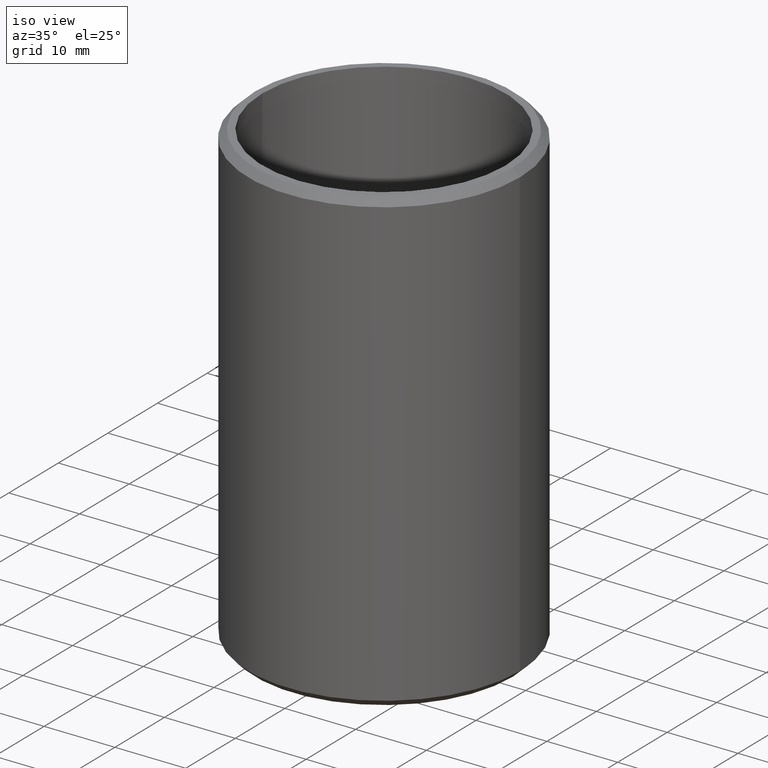
[diagram: clean part render]
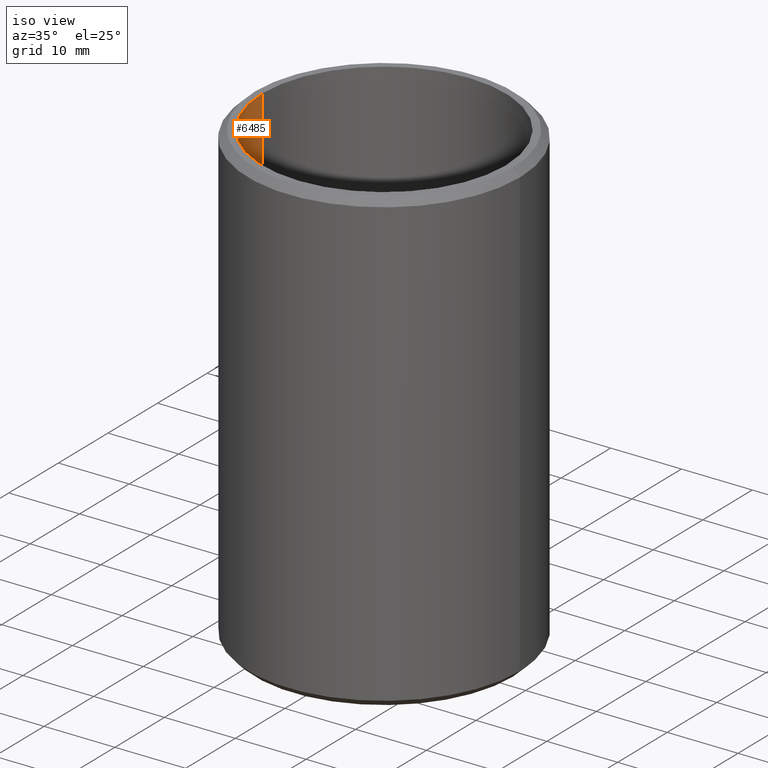
[diagram: same view with one face highlighted and labeled with its STEP entity id]
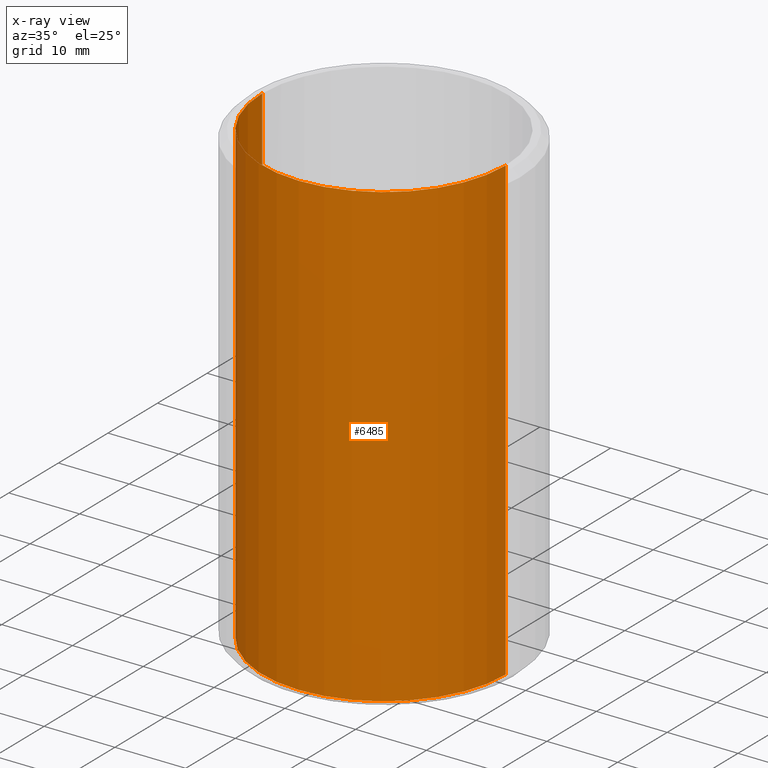
[diagram: x-ray of the same camera — body ghosted, the highlighted face saturated]
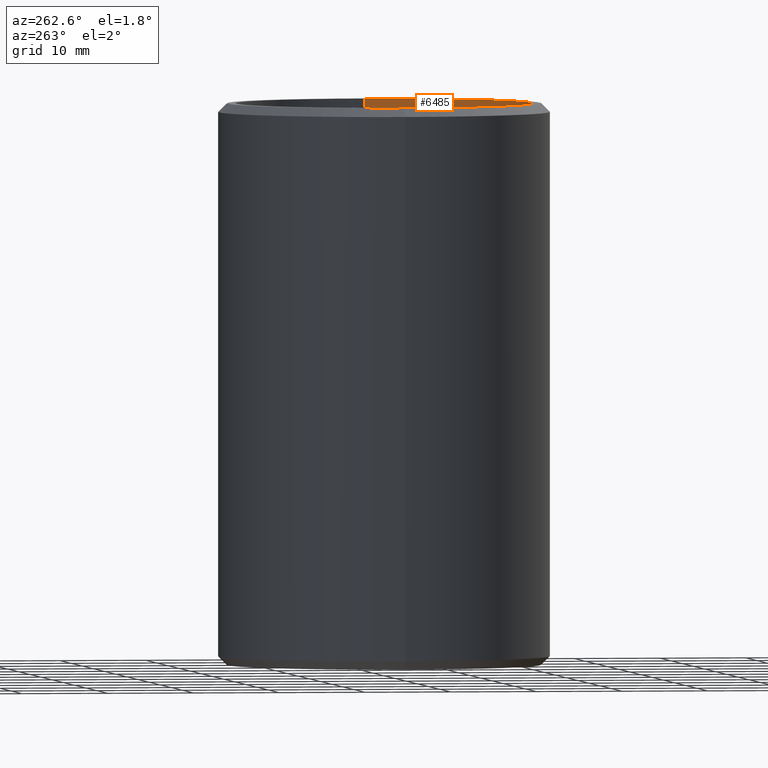
[diagram: same view with one face highlighted and labeled with its STEP entity id]
A machine part, iso view. The second image highlights one B-rep face of the part: STEP entity #6485.
The next image is the same camera in x-ray: the body ghosted, the highlighted face saturated — about 0% of this face is hidden behind the body in this view.
A second angle (auxiliary view) of the same face is appended — the face is thin or edge-on in the first view.
In plain terms, the highlighted cylindrical surface (partial cylindrical patch) has radius 17.2 mm, axis along (-0, -0, -1).
Its self-contained STEP definition (entity closure, byte-faithful):
#44 = LINE ( 'NONE', #8209, #573 ) ;
#51 = VERTEX_POINT ( 'NONE', #8449 ) ;
#99 = CARTESIAN_POINT ( 'NONE',  ( -17.20000000000001000, -0.01147758811715162400, 6.124840077553344900 ) ) ;
#102 = CARTESIAN_POINT ( 'NONE',  ( -17.19999999999999900, -1.551054894538230000E-016, 0.3137686965812014300 ) ) ;
#112 = CARTESIAN_POINT ( 'NONE',  ( -17.19999999999999900, -6.273337765602161900E-017, -0.9890523481114830200 ) ) ;
#114 = B_SPLINE_CURVE_WITH_KNOTS ( 'NONE', 3,
 ( #2990, #9172, #10068, #6494 ),
 .UNSPECIFIED., .F., .F.,
 ( 4, 4 ),
 ( 0.0004003676352162051500, 0.0005426836108652361800 ),
 .UNSPECIFIED. ) ;
#121 = EDGE_CURVE ( 'NONE', #8332, #11373, #11036, .T. ) ;
#150 = DIRECTION ( 'NONE',  ( -0.0000000000000000000, -0.0000000000000000000, -1.000000000000000000 ) ) ;
#159 = LINE ( 'NONE', #3609, #10901 ) ;
#178 = CARTESIAN_POINT ( 'NONE',  ( -17.19999999999999200, -6.750052143481618400E-013, -1.680950252913672400 ) ) ;
#181 = VECTOR ( 'NONE', #5483, 1000.000000000000000 ) ;
#190 = B_SPLINE_CURVE_WITH_KNOTS ( 'NONE', 3,
 ( #9475, #4318, #10673, #1000 ),
 .UNSPECIFIED., .F., .F.,
 ( 4, 4 ),
 ( 0.0007601452019977792300, 0.0009231551795491816700 ),
 .UNSPECIFIED. ) ;
#223 = EDGE_CURVE ( 'NONE', #286, #8178, #1252, .T. ) ;
#238 = EDGE_CURVE ( 'NONE', #2799, #9664, #7569, .T. ) ;
#248 = CARTESIAN_POINT ( 'NONE',  ( -17.19999163786001600, -0.01696047008547024000, 7.612335987580130400 ) ) ;
#286 = VERTEX_POINT ( 'NONE', #8363 ) ;
#290 = CARTESIAN_POINT ( 'NONE',  ( -17.19999999999999900, -0.02204698858159689600, -8.669092301580365100 ) ) ;
#305 = VERTEX_POINT ( 'NONE', #3044 ) ;
#316 = B_SPLINE_CURVE_WITH_KNOTS ( 'NONE', 3,
 ( #9083, #4637, #5633, #6528 ),
 .UNSPECIFIED., .F., .F.,
 ( 4, 4 ),
 ( 0.0000000000000000000, 0.0001645194095886692000 ),
 .UNSPECIFIED. ) ;
#355 = ORIENTED_EDGE ( 'NONE', *, *, #5354, .F. ) ;
#367 = CARTESIAN_POINT ( 'NONE',  ( -17.19999274129229900, -0.01584145475481894100, 7.660271664736980000 ) ) ;
#420 = DIRECTION ( 'NONE',  ( -0.0000000000000000000, -0.0000000000000000000, -1.000000000000000000 ) ) ;
#485 = ORIENTED_EDGE ( 'NONE', *, *, #5234, .F. ) ;
#532 = EDGE_CURVE ( 'NONE', #8866, #9374, #4389, .T. ) ;
#548 = VECTOR ( 'NONE', #9998, 1000.000000000000000 ) ;
#560 = CARTESIAN_POINT ( 'NONE',  ( -17.19999999999999900, 7.823013235844992600E-012, 7.753592224367760200 ) ) ;
#567 = VERTEX_POINT ( 'NONE', #112 ) ;
#568 = ORIENTED_EDGE ( 'NONE', *, *, #10155, .F. ) ;
#572 = VECTOR ( 'NONE', #4758, 1000.000000000000000 ) ;
#573 = VECTOR ( 'NONE', #8950, 1000.000000000000000 ) ;
#642 = CARTESIAN_POINT ( 'NONE',  ( -17.19999999999999900, 0.0000000000000000000, 32.50000000000000000 ) ) ;
#652 = CARTESIAN_POINT ( 'NONE',  ( -17.19996839924588300, -0.03298397858884000200, -8.502422365173185200 ) ) ;
#666 = VERTEX_POINT ( 'NONE', #9406 ) ;
#669 = CARTESIAN_POINT ( 'NONE',  ( -17.19999163786001600, -0.01696047008547024000, 6.034217247596156000 ) ) ;
#703 = VECTOR ( 'NONE', #7242, 1000.000000000000000 ) ;
#711 = CARTESIAN_POINT ( 'NONE',  ( -17.19999999999999900, -1.551054894538230000E-016, 5.249265491452992400 ) ) ;
#735 = ORIENTED_EDGE ( 'NONE', *, *, #1875, .T. ) ;
#782 = EDGE_CURVE ( 'NONE', #2382, #11032, #2619, .T. ) ;
#785 = B_SPLINE_CURVE_WITH_KNOTS ( 'NONE', 3,
 ( #8468, #652, #7536, #6690 ),
 .UNSPECIFIED., .F., .F.,
 ( 4, 4 ),
 ( 0.0000000000000000000, 0.0001645194095886690400 ),
 .UNSPECIFIED. ) ;
#799 = EDGE_CURVE ( 'NONE', #3385, #5869, #159, .T. ) ;
#806 = VECTOR ( 'NONE', #11263, 1000.000000000000000 ) ;
#814 = EDGE_CURVE ( 'NONE', #8173, #9860, #11387, .T. ) ;
#817 = CARTESIAN_POINT ( 'NONE',  ( -17.19999999999999900, 0.0000000000000000000, 32.50000000000000000 ) ) ;
#833 = CARTESIAN_POINT ( 'NONE',  ( -17.19999999999999900, -1.551054894538230000E-016, 32.50000000000000000 ) ) ;
#863 = EDGE_LOOP ( 'NONE', ( #5368, #10427, #3969, #8916, #2863, #10523, #1728, #9121, #5558, #9563, #7054, #10760, #485, #1609, #5711, #355, #4278, #568, #3083, #2821, #4075, #1535, #10247, #10856, #6209, #3281, #5432, #3047, #3494, #9116, #3871, #8063, #1261, #2928, #4181, #3201, #8839, #4590, #4227, #1978, #6651, #9486, #4692, #2667, #9154, #4438, #11410, #8717, #9963, #8044, #1830, #2500, #8591, #735, #1169 ) ) ;
#924 = EDGE_CURVE ( 'NONE', #5114, #2052, #316, .T. ) ;
#952 = VECTOR ( 'NONE', #5932, 1000.000000000000000 ) ;
#988 = VECTOR ( 'NONE', #2514, 1000.000000000000000 ) ;
#1000 = CARTESIAN_POINT ( 'NONE',  ( -17.19996655141567400, -0.03392094017094032800, -3.876792451255335800 ) ) ;
#1015 = CARTESIAN_POINT ( 'NONE',  ( -17.19999999999999200, 5.563113133065403100E-012, 3.200599436973296600 ) ) ;
#1017 = CARTESIAN_POINT ( 'NONE',  ( 0.0000000000000000000, 0.0000000000000000000, -32.50000000000000000 ) ) ;
#1059 = CARTESIAN_POINT ( 'NONE',  ( -17.19999999999999900, -1.551054894538230000E-016, -6.080328525641023800 ) ) ;
#1084 = CARTESIAN_POINT ( 'NONE',  ( -17.19999999999999900, -1.551054894538230000E-016, 32.50000000000000000 ) ) ;
#1137 = CARTESIAN_POINT ( 'NONE',  ( -17.19999999999999900, -1.551054894538230000E-016, 32.50000000000000000 ) ) ;
#1143 = B_SPLINE_CURVE_WITH_KNOTS ( 'NONE', 3,
 ( #248, #367, #7256, #560 ),
 .UNSPECIFIED., .F., .F.,
 ( 4, 4 ),
 ( 0.0000000000000000000, 0.0001419623447413036500 ),
 .UNSPECIFIED. ) ;
#1164 = VECTOR ( 'NONE', #11254, 1000.000000000000000 ) ;
#1165 = CARTESIAN_POINT ( 'NONE',  ( -17.19999999999999900, 0.0000000000000000000, 32.50000000000000000 ) ) ;
#1169 = ORIENTED_EDGE ( 'NONE', *, *, #2617, .F. ) ;
#1175 = DIRECTION ( 'NONE',  ( 0.0000000000000000000, 0.0000000000000000000, 1.000000000000000000 ) ) ;
#1230 = CIRCLE ( 'NONE', #8338, 17.19999999999999900 ) ;
#1238 = EDGE_CURVE ( 'NONE', #6606, #7451, #1230, .T. ) ;
#1252 = LINE ( 'NONE', #1739, #10365 ) ;
#1261 = ORIENTED_EDGE ( 'NONE', *, *, #11067, .T. ) ;
#1264 = DIRECTION ( 'NONE',  ( 0.0000000000000000000, 0.0000000000000000000, 1.000000000000000000 ) ) ;
#1299 = CARTESIAN_POINT ( 'NONE',  ( -17.19999999999999900, -1.551054894538230000E-016, 6.894431089743593900 ) ) ;
#1310 = LINE ( 'NONE', #4322, #7229 ) ;
#1321 = VECTOR ( 'NONE', #420, 1000.000000000000000 ) ;
#1338 = DIRECTION ( 'NONE',  ( -0.0000000000000000000, -0.0000000000000000000, -1.000000000000000000 ) ) ;
#1342 = VERTEX_POINT ( 'NONE', #3828 ) ;
#1365 = EDGE_CURVE ( 'NONE', #8421, #7171, #114, .T. ) ;
#1379 = EDGE_CURVE ( 'NONE', #11047, #9265, #2312, .T. ) ;
#1461 = AXIS2_PLACEMENT_3D ( 'NONE', #8137, #10742, #2056 ) ;
#1504 = CARTESIAN_POINT ( 'NONE',  ( -17.19999999999999900, 0.0000000000000000000, 32.50000000000000000 ) ) ;
#1535 = ORIENTED_EDGE ( 'NONE', *, *, #9478, .T. ) ;
#1566 = B_SPLINE_CURVE_WITH_KNOTS ( 'NONE', 3,
 ( #10483, #11374, #5265, #2538 ),
 .UNSPECIFIED., .F., .F.,
 ( 4, 4 ),
 ( 0.0003122496410272485500, 0.0004517219168809347100 ),
 .UNSPECIFIED. ) ;
#1582 = VERTEX_POINT ( 'NONE', #8759 ) ;
#1593 = CARTESIAN_POINT ( 'NONE',  ( -17.19999999999999900, 0.0000000000000000000, 32.50000000000000000 ) ) ;
#1597 = CARTESIAN_POINT ( 'NONE',  ( -17.20000000000000300, -0.01147758811715395700, 3.156757812596070700 ) ) ;
#1609 = ORIENTED_EDGE ( 'NONE', *, *, #11402, .T. ) ;
#1636 = CARTESIAN_POINT ( 'NONE',  ( -17.19999999999999900, -1.551054894538230000E-016, 8.912727029914528000 ) ) ;
#1649 = CARTESIAN_POINT ( 'NONE',  ( -17.19999999999999900, -0.02309534533612294200, -3.766004389472338500 ) ) ;
#1653 = LINE ( 'NONE', #9196, #7167 ) ;
#1726 = LINE ( 'NONE', #3052, #1321 ) ;
#1728 = ORIENTED_EDGE ( 'NONE', *, *, #121, .F. ) ;
#1739 = CARTESIAN_POINT ( 'NONE',  ( -17.19999999999999900, -1.551054894538230000E-016, 32.50000000000000000 ) ) ;
#1806 = EDGE_CURVE ( 'NONE', #7171, #7641, #1143, .T. ) ;
#1830 = ORIENTED_EDGE ( 'NONE', *, *, #1365, .T. ) ;
#1875 = EDGE_CURVE ( 'NONE', #9357, #5547, #4371, .T. ) ;
#1939 = CARTESIAN_POINT ( 'NONE',  ( -17.19999999999999900, -1.551054894538230000E-016, 1.433159722222229900 ) ) ;
#1976 = VERTEX_POINT ( 'NONE', #7746 ) ;
#1978 = ORIENTED_EDGE ( 'NONE', *, *, #8016, .T. ) ;
#1995 = EDGE_CURVE ( 'NONE', #7451, #6907, #9082, .T. ) ;
#2006 = CARTESIAN_POINT ( 'NONE',  ( -17.19999999999999900, -1.551054894538230000E-016, 32.50000000000000000 ) ) ;
#2020 = CARTESIAN_POINT ( 'NONE',  ( -17.19996655141567400, -0.03392094017094032800, -0.8021772335737118500 ) ) ;
#2034 = VERTEX_POINT ( 'NONE', #7146 ) ;
#2052 = VERTEX_POINT ( 'NONE', #178 ) ;
#2056 = DIRECTION ( 'NONE',  ( -1.000000000000000000, 0.0000000000000000000, 0.0000000000000000000 ) ) ;
#2111 = CARTESIAN_POINT ( 'NONE',  ( -17.19996815175934300, -0.03310946921701069700, -8.613626624733939300 ) ) ;
#2130 = CARTESIAN_POINT ( 'NONE',  ( -17.19999999999999900, -4.707872648310445400E-014, 2.928196923410093500 ) ) ;
#2143 = CARTESIAN_POINT ( 'NONE',  ( -17.19996815175935000, -0.03310946921701088400, -1.897280470887784600 ) ) ;
#2183 = EDGE_CURVE ( 'NONE', #8786, #2375, #11141, .T. ) ;
#2216 = VECTOR ( 'NONE', #5957, 1000.000000000000000 ) ;
#2226 = FACE_OUTER_BOUND ( 'NONE', #863, .T. ) ;
#2260 = VECTOR ( 'NONE', #9498, 1000.000000000000000 ) ;
#2309 = DIRECTION ( 'NONE',  ( 0.0000000000000000000, 0.0000000000000000000, 1.000000000000000000 ) ) ;
#2312 = LINE ( 'NONE', #4642, #548 ) ;
#2331 = CARTESIAN_POINT ( 'NONE',  ( -17.19999999999999900, -1.551054894538230000E-016, 32.50000000000000000 ) ) ;
#2334 = CARTESIAN_POINT ( 'NONE',  ( -17.19999999999999900, 0.0000000000000000000, 32.50000000000000000 ) ) ;
#2352 = LINE ( 'NONE', #2334, #2216 ) ;
#2366 = VECTOR ( 'NONE', #4768, 1000.000000000000000 ) ;
#2375 = VERTEX_POINT ( 'NONE', #6144 ) ;
#2382 = VERTEX_POINT ( 'NONE', #102 ) ;
#2384 = VERTEX_POINT ( 'NONE', #1015 ) ;
#2438 = CARTESIAN_POINT ( 'NONE',  ( -17.19999999999999200, 5.563113133065403100E-012, 3.200599436973296600 ) ) ;
#2448 = EDGE_CURVE ( 'NONE', #51, #2953, #5488, .T. ) ;
#2471 = EDGE_CURVE ( 'NONE', #51, #5087, #2974, .T. ) ;
#2493 = CARTESIAN_POINT ( 'NONE',  ( -17.19999999999999900, -1.551054894538230000E-016, 5.639356303418805900 ) ) ;
#2500 = ORIENTED_EDGE ( 'NONE', *, *, #1806, .T. ) ;
#2514 = DIRECTION ( 'NONE',  ( -0.0000000000000000000, -0.0000000000000000000, -1.000000000000000000 ) ) ;
#2538 = CARTESIAN_POINT ( 'NONE',  ( -17.19999163786001600, -0.01696047008547024000, 6.034217247596156000 ) ) ;
#2543 = CARTESIAN_POINT ( 'NONE',  ( -17.19999999999999900, -1.551054894538230000E-016, -2.942641559829053800 ) ) ;
#2610 = EDGE_CURVE ( 'NONE', #286, #4841, #9799, .T. ) ;
#2617 = EDGE_CURVE ( 'NONE', #6606, #5547, #7962, .T. ) ;
#2619 = LINE ( 'NONE', #5086, #8663 ) ;
#2647 = CARTESIAN_POINT ( 'NONE',  ( -17.19999999999999900, -1.551054894538230000E-016, 32.50000000000000000 ) ) ;
#2649 = CARTESIAN_POINT ( 'NONE',  ( -17.19999999999999900, 5.566822396220548000E-012, 6.168681701930575300 ) ) ;
#2667 = ORIENTED_EDGE ( 'NONE', *, *, #9451, .T. ) ;
#2692 = CARTESIAN_POINT ( 'NONE',  ( -17.19999163786001600, -0.01696047008547024000, 6.034217247596156000 ) ) ;
#2724 = EDGE_CURVE ( 'NONE', #5087, #11373, #785, .T. ) ;
#2771 = VECTOR ( 'NONE', #5889, 1000.000000000000000 ) ;
#2799 = VERTEX_POINT ( 'NONE', #1939 ) ;
#2821 = ORIENTED_EDGE ( 'NONE', *, *, #924, .T. ) ;
#2863 = ORIENTED_EDGE ( 'NONE', *, *, #2471, .T. ) ;
#2877 = CARTESIAN_POINT ( 'NONE',  ( 0.0000000000000000000, 0.0000000000000000000, 32.50000000000000000 ) ) ;
#2902 = LINE ( 'NONE', #9946, #5083 ) ;
#2928 = ORIENTED_EDGE ( 'NONE', *, *, #8033, .F. ) ;
#2953 = VERTEX_POINT ( 'NONE', #5518 ) ;
#2974 = B_SPLINE_CURVE_WITH_KNOTS ( 'NONE', 3,
 ( #4564, #290, #2111, #6349 ),
 .UNSPECIFIED., .F., .F.,
 ( 4, 4 ),
 ( 0.0007601452019977896400, 0.0009231551795491898000 ),
 .UNSPECIFIED. ) ;
#2990 = CARTESIAN_POINT ( 'NONE',  ( -17.20000000000000600, -1.062149140308146800E-013, 7.468995267329146000 ) ) ;
#3044 = CARTESIAN_POINT ( 'NONE',  ( -17.19999999999999900, -1.551054894538230000E-016, 2.281183226495734600 ) ) ;
#3047 = ORIENTED_EDGE ( 'NONE', *, *, #7420, .F. ) ;
#3052 = CARTESIAN_POINT ( 'NONE',  ( -17.19999999999999900, 0.0000000000000000000, 32.50000000000000000 ) ) ;
#3083 = ORIENTED_EDGE ( 'NONE', *, *, #11240, .T. ) ;
#3085 = DIRECTION ( 'NONE',  ( 0.0000000000000000000, 0.0000000000000000000, 1.000000000000000000 ) ) ;
#3090 = EDGE_CURVE ( 'NONE', #7702, #1976, #1726, .T. ) ;
#3170 = LINE ( 'NONE', #642, #9962 ) ;
#3201 = ORIENTED_EDGE ( 'NONE', *, *, #3424, .T. ) ;
#3279 = EDGE_CURVE ( 'NONE', #2382, #2375, #10830, .T. ) ;
#3281 = ORIENTED_EDGE ( 'NONE', *, *, #2183, .F. ) ;
#3284 = CARTESIAN_POINT ( 'NONE',  ( -17.19996880443272500, -0.03277852437333300000, -0.7445069608378776000 ) ) ;
#3297 = DIRECTION ( 'NONE',  ( -0.0000000000000000000, -0.0000000000000000000, -1.000000000000000000 ) ) ;
#3315 = EDGE_CURVE ( 'NONE', #7702, #9374, #1310, .T. ) ;
#3336 = CARTESIAN_POINT ( 'NONE',  ( -17.19999999999999900, -1.551054894538230000E-016, 2.671274038461541400 ) ) ;
#3364 = DIRECTION ( 'NONE',  ( 0.0000000000000000000, 0.0000000000000000000, 1.000000000000000000 ) ) ;
#3385 = VERTEX_POINT ( 'NONE', #7065 ) ;
#3391 = CARTESIAN_POINT ( 'NONE',  ( -17.19999999999999900, -1.551054894538230000E-016, 32.50000000000000000 ) ) ;
#3422 = LINE ( 'NONE', #1084, #8967 ) ;
#3424 = EDGE_CURVE ( 'NONE', #4586, #2384, #6297, .T. ) ;
#3438 = DIRECTION ( 'NONE',  ( -0.0000000000000000000, -0.0000000000000000000, -1.000000000000000000 ) ) ;
#3477 = LINE ( 'NONE', #3881, #2366 ) ;
#3494 = ORIENTED_EDGE ( 'NONE', *, *, #238, .T. ) ;
#3500 = CARTESIAN_POINT ( 'NONE',  ( -17.19999999999999900, -1.551054894538230000E-016, 1.043068910256413000 ) ) ;
#3509 = CARTESIAN_POINT ( 'NONE',  ( -17.19999999999999900, -6.753671091748762400E-013, -3.716206663170081200 ) ) ;
#3519 = CARTESIAN_POINT ( 'NONE',  ( -17.19996655141567400, -0.03392094017094032800, -3.876792451255335800 ) ) ;
#3580 = CARTESIAN_POINT ( 'NONE',  ( -17.19999999999999900, -3.796825186067401300E-016, -2.002959115374386200 ) ) ;
#3592 = LINE ( 'NONE', #8303, #572 ) ;
#3609 = CARTESIAN_POINT ( 'NONE',  ( -17.19999999999999900, -1.551054894538230000E-016, 32.50000000000000000 ) ) ;
#3615 = DIRECTION ( 'NONE',  ( 0.0000000000000000000, 0.0000000000000000000, 1.000000000000000000 ) ) ;
#3623 = CYLINDRICAL_SURFACE ( 'NONE', #1461, 17.19999999999999900 ) ;
#3670 = EDGE_CURVE ( 'NONE', #8686, #1342, #8904, .T. ) ;
#3682 = CARTESIAN_POINT ( 'NONE',  ( -17.19999999999999900, 0.0000000000000000000, 32.50000000000000000 ) ) ;
#3692 = DIRECTION ( 'NONE',  ( -0.0000000000000000000, -0.0000000000000000000, -1.000000000000000000 ) ) ;
#3703 = VECTOR ( 'NONE', #150, 1000.000000000000000 ) ;
#3761 = B_SPLINE_CURVE_WITH_KNOTS ( 'NONE', 3,
 ( #7412, #8263, #2143, #9171 ),
 .UNSPECIFIED., .F., .F.,
 ( 4, 4 ),
 ( 0.0007601452019977557000, 0.0009231551795491461100 ),
 .UNSPECIFIED. ) ;
#3793 = EDGE_CURVE ( 'NONE', #5091, #9664, #7369, .T. ) ;
#3802 = CARTESIAN_POINT ( 'NONE',  ( -17.19999999999999900, -6.273337765602161900E-017, -0.9890523481114830200 ) ) ;
#3828 = CARTESIAN_POINT ( 'NONE',  ( -17.19999999999999900, -1.551054894538230000E-016, 3.926348824786327600 ) ) ;
#3859 = DIRECTION ( 'NONE',  ( -0.0000000000000000000, -0.0000000000000000000, -1.000000000000000000 ) ) ;
#3871 = ORIENTED_EDGE ( 'NONE', *, *, #10105, .T. ) ;
#3873 = CARTESIAN_POINT ( 'NONE',  ( -17.19996655141567400, -0.03392094017094032800, -0.8021772335737118500 ) ) ;
#3881 = CARTESIAN_POINT ( 'NONE',  ( -17.19999999999999900, 0.0000000000000000000, 32.50000000000000000 ) ) ;
#3888 = CIRCLE ( 'NONE', #10384, 17.19999999999999900 ) ;
#3924 = CARTESIAN_POINT ( 'NONE',  ( -17.20000000000001000, -0.01155977357769695200, 2.973092807608460800 ) ) ;
#3969 = ORIENTED_EDGE ( 'NONE', *, *, #6368, .F. ) ;
#3988 = VERTEX_POINT ( 'NONE', #10432 ) ;
#4015 = VECTOR ( 'NONE', #4681, 1000.000000000000000 ) ;
#4075 = ORIENTED_EDGE ( 'NONE', *, *, #8141, .F. ) ;
#4181 = ORIENTED_EDGE ( 'NONE', *, *, #7930, .T. ) ;
#4196 = CARTESIAN_POINT ( 'NONE',  ( -17.19999999999999900, -1.551054894538230000E-016, 32.50000000000000000 ) ) ;
#4227 = ORIENTED_EDGE ( 'NONE', *, *, #3670, .F. ) ;
#4231 = CARTESIAN_POINT ( 'NONE',  ( -17.20000000000001000, -6.754374129094985500E-013, -8.397296406759828400 ) ) ;
#4278 = ORIENTED_EDGE ( 'NONE', *, *, #7184, .T. ) ;
#4301 = EDGE_CURVE ( 'NONE', #8472, #8178, #5000, .T. ) ;
#4309 = LINE ( 'NONE', #817, #1164 ) ;
#4318 = CARTESIAN_POINT ( 'NONE',  ( -17.20000000000000600, -0.02204698858159715600, -3.988002557990613100 ) ) ;
#4322 = CARTESIAN_POINT ( 'NONE',  ( -17.19999999999999900, -1.551054894538230000E-016, 32.50000000000000000 ) ) ;
#4371 = LINE ( 'NONE', #9434, #806 ) ;
#4389 = LINE ( 'NONE', #1165, #5897 ) ;
#4438 = ORIENTED_EDGE ( 'NONE', *, *, #9301, .T. ) ;
#4453 = CARTESIAN_POINT ( 'NONE',  ( -17.19999999999999900, 0.0000000000000000000, 32.50000000000000000 ) ) ;
#4521 = CARTESIAN_POINT ( 'NONE',  ( -17.19999163786001600, -0.01696047008547024000, 3.066134982638891900 ) ) ;
#4553 = DIRECTION ( 'NONE',  ( -0.0000000000000000000, -0.0000000000000000000, -1.000000000000000000 ) ) ;
#4564 = CARTESIAN_POINT ( 'NONE',  ( -17.20000000000000600, -7.210367963502232600E-016, -8.719305269220541300 ) ) ;
#4586 = VERTEX_POINT ( 'NONE', #4521 ) ;
#4590 = ORIENTED_EDGE ( 'NONE', *, *, #4810, .T. ) ;
#4617 = CARTESIAN_POINT ( 'NONE',  ( -17.19999999999999900, 0.0000000000000000000, 32.50000000000000000 ) ) ;
#4637 = CARTESIAN_POINT ( 'NONE',  ( -17.19996839924588300, -0.03298397858883993900, -1.786076211327030500 ) ) ;
#4638 = DIRECTION ( 'NONE',  ( 0.0000000000000000000, 0.0000000000000000000, 1.000000000000000000 ) ) ;
#4642 = CARTESIAN_POINT ( 'NONE',  ( -17.19999999999999900, 0.0000000000000000000, 32.50000000000000000 ) ) ;
#4646 = CARTESIAN_POINT ( 'NONE',  ( -17.19996769502841600, -0.03334105939266332500, -0.8661805948283112200 ) ) ;
#4681 = DIRECTION ( 'NONE',  ( 0.0000000000000000000, 0.0000000000000000000, 1.000000000000000000 ) ) ;
#4692 = ORIENTED_EDGE ( 'NONE', *, *, #4301, .F. ) ;
#4758 = DIRECTION ( 'NONE',  ( -0.0000000000000000000, -0.0000000000000000000, -1.000000000000000000 ) ) ;
#4768 = DIRECTION ( 'NONE',  ( -0.0000000000000000000, -0.0000000000000000000, -1.000000000000000000 ) ) ;
#4810 = EDGE_CURVE ( 'NONE', #3988, #1342, #6396, .T. ) ;
#4827 = CARTESIAN_POINT ( 'NONE',  ( -17.19999999999999900, 0.0000000000000000000, 32.50000000000000000 ) ) ;
#4841 = VERTEX_POINT ( 'NONE', #11148 ) ;
#5000 = LINE ( 'NONE', #6402, #9310 ) ;
#5065 = EDGE_CURVE ( 'NONE', #9357, #7641, #4309, .T. ) ;
#5083 = VECTOR ( 'NONE', #3859, 1000.000000000000000 ) ;
#5086 = CARTESIAN_POINT ( 'NONE',  ( -17.19999999999999900, 0.0000000000000000000, 32.50000000000000000 ) ) ;
#5087 = VERTEX_POINT ( 'NONE', #6293 ) ;
#5091 = VERTEX_POINT ( 'NONE', #6251 ) ;
#5114 = VERTEX_POINT ( 'NONE', #5223 ) ;
#5125 = VERTEX_POINT ( 'NONE', #3580 ) ;
#5220 = CARTESIAN_POINT ( 'NONE',  ( -17.19996655141567400, -0.03392094017094032800, -3.876792451255335800 ) ) ;
#5223 = CARTESIAN_POINT ( 'NONE',  ( -17.19996655141567400, -0.03392094017094032800, -1.841536040998927600 ) ) ;
#5234 = EDGE_CURVE ( 'NONE', #2034, #1582, #9573, .T. ) ;
#5253 = CARTESIAN_POINT ( 'NONE',  ( -17.19999163786001600, -0.01696047008547024000, 7.612335987580130400 ) ) ;
#5265 = CARTESIAN_POINT ( 'NONE',  ( -17.19999271178686200, -0.01587137687797423500, 5.987477891220770200 ) ) ;
#5271 = VERTEX_POINT ( 'NONE', #7465 ) ;
#5320 = DIRECTION ( 'NONE',  ( 0.0000000000000000000, 0.0000000000000000000, 1.000000000000000000 ) ) ;
#5339 = CARTESIAN_POINT ( 'NONE',  ( -17.19999999999999900, -1.551054894538230000E-016, 8.794003739316238500 ) ) ;
#5354 = EDGE_CURVE ( 'NONE', #6991, #10055, #3477, .T. ) ;
#5368 = ORIENTED_EDGE ( 'NONE', *, *, #1238, .T. ) ;
#5432 = ORIENTED_EDGE ( 'NONE', *, *, #9653, .T. ) ;
#5483 = DIRECTION ( 'NONE',  ( 0.0000000000000000000, 0.0000000000000000000, 1.000000000000000000 ) ) ;
#5488 = LINE ( 'NONE', #4453, #9644 ) ;
#5518 = CARTESIAN_POINT ( 'NONE',  ( -17.19999999999999900, 0.0000000000000000000, -32.50000000000000000 ) ) ;
#5547 = VERTEX_POINT ( 'NONE', #1636 ) ;
#5558 = ORIENTED_EDGE ( 'NONE', *, *, #3090, .F. ) ;
#5579 = CARTESIAN_POINT ( 'NONE',  ( -17.19999999999999900, -1.551054894538230000E-016, 32.50000000000000000 ) ) ;
#5600 = CARTESIAN_POINT ( 'NONE',  ( 17.19999999999999900, 2.106392494533447400E-015, 32.50000000000000000 ) ) ;
#5623 = CARTESIAN_POINT ( 'NONE',  ( -17.19999163786001600, -0.01696047008547024000, 3.066134982638891900 ) ) ;
#5633 = CARTESIAN_POINT ( 'NONE',  ( -17.19999999999999900, -0.02309534533612175900, -1.730747979215931900 ) ) ;
#5655 = LINE ( 'NONE', #3391, #181 ) ;
#5711 = ORIENTED_EDGE ( 'NONE', *, *, #7063, .T. ) ;
#5730 = EDGE_CURVE ( 'NONE', #8332, #1976, #6920, .T. ) ;
#5869 = VERTEX_POINT ( 'NONE', #1299 ) ;
#5889 = DIRECTION ( 'NONE',  ( -0.0000000000000000000, -0.0000000000000000000, -1.000000000000000000 ) ) ;
#5897 = VECTOR ( 'NONE', #10869, 1000.000000000000000 ) ;
#5932 = DIRECTION ( 'NONE',  ( -0.0000000000000000000, -0.0000000000000000000, -1.000000000000000000 ) ) ;
#5957 = DIRECTION ( 'NONE',  ( -0.0000000000000000000, -0.0000000000000000000, -1.000000000000000000 ) ) ;
#6044 = CARTESIAN_POINT ( 'NONE',  ( -17.19999999999999900, 7.823013235844992600E-012, 7.753592224367760200 ) ) ;
#6072 = LINE ( 'NONE', #7681, #6627 ) ;
#6144 = CARTESIAN_POINT ( 'NONE',  ( -17.19999999999999900, -1.551054894538230000E-016, 0.4324919871794909400 ) ) ;
#6149 = B_SPLINE_CURVE_WITH_KNOTS ( 'NONE', 3,
 ( #8566, #3284, #7710, #9474 ),
 .UNSPECIFIED., .F., .F.,
 ( 4, 4 ),
 ( 0.0000000000000000000, 0.0001713056969255017500 ),
 .UNSPECIFIED. ) ;
#6181 = VERTEX_POINT ( 'NONE', #3336 ) ;
#6209 = ORIENTED_EDGE ( 'NONE', *, *, #3279, .T. ) ;
#6251 = CARTESIAN_POINT ( 'NONE',  ( -17.19999999999999900, -1.551054894538230000E-016, 2.162459935897441500 ) ) ;
#6293 = CARTESIAN_POINT ( 'NONE',  ( -17.19996655141567400, -0.03392094017094032800, -8.557882194845083400 ) ) ;
#6297 = B_SPLINE_CURVE_WITH_KNOTS ( 'NONE', 3,
 ( #8730, #6857, #1597, #2438 ),
 .UNSPECIFIED., .F., .F.,
 ( 4, 4 ),
 ( 0.0000000000000000000, 0.0001354148054459341400 ),
 .UNSPECIFIED. ) ;
#6349 = CARTESIAN_POINT ( 'NONE',  ( -17.19996655141567400, -0.03392094017094032800, -8.557882194845083400 ) ) ;
#6353 = LINE ( 'NONE', #8099, #9961 ) ;
#6368 = EDGE_CURVE ( 'NONE', #2953, #6907, #3888, .T. ) ;
#6396 = LINE ( 'NONE', #833, #6669 ) ;
#6402 = CARTESIAN_POINT ( 'NONE',  ( -17.19999999999999900, 0.0000000000000000000, 32.50000000000000000 ) ) ;
#6485 = ADVANCED_FACE ( 'NONE', ( #2226 ), #3623, .F. ) ;
#6494 = CARTESIAN_POINT ( 'NONE',  ( -17.19999163786001600, -0.01696047008547024000, 7.612335987580130400 ) ) ;
#6521 = CARTESIAN_POINT ( 'NONE',  ( -17.19999999999999900, 5.566822396220548000E-012, 6.168681701930575300 ) ) ;
#6528 = CARTESIAN_POINT ( 'NONE',  ( -17.19999999999999200, -6.750052143481618400E-013, -1.680950252913672400 ) ) ;
#6580 = CARTESIAN_POINT ( 'NONE',  ( -17.19999999999999900, -1.551054894538230000E-016, 5.520633012820516300 ) ) ;
#6606 = VERTEX_POINT ( 'NONE', #10206 ) ;
#6627 = VECTOR ( 'NONE', #3297, 1000.000000000000000 ) ;
#6651 = ORIENTED_EDGE ( 'NONE', *, *, #2610, .F. ) ;
#6669 = VECTOR ( 'NONE', #2309, 1000.000000000000000 ) ;
#6675 = VECTOR ( 'NONE', #3364, 1000.000000000000000 ) ;
#6690 = CARTESIAN_POINT ( 'NONE',  ( -17.20000000000001000, -6.754374129094985500E-013, -8.397296406759828400 ) ) ;
#6719 = VECTOR ( 'NONE', #3692, 1000.000000000000000 ) ;
#6769 = LINE ( 'NONE', #2647, #7596 ) ;
#6837 = EDGE_CURVE ( 'NONE', #8421, #5869, #2352, .T. ) ;
#6857 = CARTESIAN_POINT ( 'NONE',  ( -17.19999285777112500, -0.01572333097396974200, 3.111699485097284300 ) ) ;
#6907 = VERTEX_POINT ( 'NONE', #9491 ) ;
#6919 = CARTESIAN_POINT ( 'NONE',  ( -17.19996839924588300, -0.03298397858883992500, -3.821332621583438400 ) ) ;
#6920 = LINE ( 'NONE', #8149, #4015 ) ;
#6932 = CARTESIAN_POINT ( 'NONE',  ( -17.19999999999999900, -1.551054894538230000E-016, -7.844217414529911300 ) ) ;
#6991 = VERTEX_POINT ( 'NONE', #2543 ) ;
#7054 = ORIENTED_EDGE ( 'NONE', *, *, #532, .F. ) ;
#7063 = EDGE_CURVE ( 'NONE', #9596, #10055, #9257, .T. ) ;
#7065 = CARTESIAN_POINT ( 'NONE',  ( -17.19999999999999900, -1.551054894538230000E-016, 6.775707799145304300 ) ) ;
#7146 = CARTESIAN_POINT ( 'NONE',  ( -17.19999999999999900, -4.243635065744044700E-016, -4.038215525630793200 ) ) ;
#7157 = VERTEX_POINT ( 'NONE', #10559 ) ;
#7167 = VECTOR ( 'NONE', #10249, 1000.000000000000000 ) ;
#7171 = VERTEX_POINT ( 'NONE', #5253 ) ;
#7184 = EDGE_CURVE ( 'NONE', #6991, #7157, #6769, .T. ) ;
#7207 = VECTOR ( 'NONE', #9297, 1000.000000000000000 ) ;
#7226 = DIRECTION ( 'NONE',  ( 1.000000000000000000, 0.0000000000000000000, 0.0000000000000000000 ) ) ;
#7229 = VECTOR ( 'NONE', #4638, 1000.000000000000000 ) ;
#7242 = DIRECTION ( 'NONE',  ( 0.0000000000000000000, 0.0000000000000000000, 1.000000000000000000 ) ) ;
#7256 = CARTESIAN_POINT ( 'NONE',  ( -17.20000000000000600, -0.01193490576785924200, 7.707684648171186500 ) ) ;
#7331 = CARTESIAN_POINT ( 'NONE',  ( -17.19999999999999900, -1.551054894538230000E-016, 2.552550747863251000 ) ) ;
#7369 = LINE ( 'NONE', #3682, #10964 ) ;
#7412 = CARTESIAN_POINT ( 'NONE',  ( -17.19999999999999900, -3.796825186067401300E-016, -2.002959115374386200 ) ) ;
#7420 = EDGE_CURVE ( 'NONE', #2799, #666, #3592, .T. ) ;
#7451 = VERTEX_POINT ( 'NONE', #5600 ) ;
#7465 = CARTESIAN_POINT ( 'NONE',  ( -17.19999999999999900, -4.707872648310445400E-014, 2.928196923410093500 ) ) ;
#7536 = CARTESIAN_POINT ( 'NONE',  ( -17.20000000000001000, -0.02309534533613135200, -8.447094133062082100 ) ) ;
#7569 = LINE ( 'NONE', #1137, #9667 ) ;
#7596 = VECTOR ( 'NONE', #7827, 1000.000000000000000 ) ;
#7641 = VERTEX_POINT ( 'NONE', #6044 ) ;
#7681 = CARTESIAN_POINT ( 'NONE',  ( -17.19999999999999900, 0.0000000000000000000, 32.50000000000000000 ) ) ;
#7702 = VERTEX_POINT ( 'NONE', #9751 ) ;
#7710 = CARTESIAN_POINT ( 'NONE',  ( -17.19999999999999900, -0.02343688045399146300, -0.6869134089848012400 ) ) ;
#7746 = CARTESIAN_POINT ( 'NONE',  ( -17.19999999999999900, -1.551054894538230000E-016, -7.725494123931619900 ) ) ;
#7827 = DIRECTION ( 'NONE',  ( 0.0000000000000000000, 0.0000000000000000000, 1.000000000000000000 ) ) ;
#7845 = VECTOR ( 'NONE', #3085, 1000.000000000000000 ) ;
#7930 = EDGE_CURVE ( 'NONE', #5271, #4586, #8910, .T. ) ;
#7962 = LINE ( 'NONE', #1593, #10806 ) ;
#8016 = EDGE_CURVE ( 'NONE', #8686, #4841, #6353, .T. ) ;
#8019 = VERTEX_POINT ( 'NONE', #2020 ) ;
#8033 = EDGE_CURVE ( 'NONE', #5271, #6181, #2902, .T. ) ;
#8044 = ORIENTED_EDGE ( 'NONE', *, *, #6837, .F. ) ;
#8063 = ORIENTED_EDGE ( 'NONE', *, *, #10187, .F. ) ;
#8099 = CARTESIAN_POINT ( 'NONE',  ( -17.19999999999999900, -1.551054894538230000E-016, 32.50000000000000000 ) ) ;
#8137 = CARTESIAN_POINT ( 'NONE',  ( 0.0000000000000000000, 0.0000000000000000000, 32.50000000000000000 ) ) ;
#8141 = EDGE_CURVE ( 'NONE', #567, #2052, #1653, .T. ) ;
#8149 = CARTESIAN_POINT ( 'NONE',  ( -17.19999999999999900, -1.551054894538230000E-016, 32.50000000000000000 ) ) ;
#8169 = CARTESIAN_POINT ( 'NONE',  ( -17.19999999999999900, 0.0000000000000000000, 32.50000000000000000 ) ) ;
#8173 = VERTEX_POINT ( 'NONE', #669 ) ;
#8178 = VERTEX_POINT ( 'NONE', #711 ) ;
#8209 = CARTESIAN_POINT ( 'NONE',  ( -17.19999999999999900, 0.0000000000000000000, 32.50000000000000000 ) ) ;
#8263 = CARTESIAN_POINT ( 'NONE',  ( -17.19999999999999900, -0.02204698858159884500, -1.952746147734206100 ) ) ;
#8271 = CARTESIAN_POINT ( 'NONE',  ( -17.19999999999998900, -0.02342409901532165400, -0.9299177957523308000 ) ) ;
#8303 = CARTESIAN_POINT ( 'NONE',  ( -17.19999999999999900, 0.0000000000000000000, 32.50000000000000000 ) ) ;
#8332 = VERTEX_POINT ( 'NONE', #6932 ) ;
#8338 = AXIS2_PLACEMENT_3D ( 'NONE', #2877, #10861, #7226 ) ;
#8363 = CARTESIAN_POINT ( 'NONE',  ( -17.19999999999999900, -1.551054894538230000E-016, 5.130542200854702800 ) ) ;
#8421 = VERTEX_POINT ( 'NONE', #8920 ) ;
#8449 = CARTESIAN_POINT ( 'NONE',  ( -17.20000000000000600, -7.210367963502232600E-016, -8.719305269220541300 ) ) ;
#8468 = CARTESIAN_POINT ( 'NONE',  ( -17.19996655141567400, -0.03392094017094032800, -8.557882194845083400 ) ) ;
#8472 = VERTEX_POINT ( 'NONE', #6580 ) ;
#8538 = CARTESIAN_POINT ( 'NONE',  ( -17.19999999999999900, -1.551054894538230000E-016, 4.469083867521369800 ) ) ;
#8546 = B_SPLINE_CURVE_WITH_KNOTS ( 'NONE', 3,
 ( #3802, #8271, #4646, #3873 ),
 .UNSPECIFIED., .F., .F.,
 ( 4, 4 ),
 ( 0.0005408975862354429300, 0.0007297829456327963500 ),
 .UNSPECIFIED. ) ;
#8566 = CARTESIAN_POINT ( 'NONE',  ( -17.19996655141567400, -0.03392094017094032800, -0.8021772335737118500 ) ) ;
#8570 = CARTESIAN_POINT ( 'NONE',  ( -17.19999999999999900, 0.0000000000000000000, 32.50000000000000000 ) ) ;
#8591 = ORIENTED_EDGE ( 'NONE', *, *, #5065, .F. ) ;
#8602 = EDGE_CURVE ( 'NONE', #8866, #1582, #10495, .T. ) ;
#8663 = VECTOR ( 'NONE', #3438, 1000.000000000000000 ) ;
#8686 = VERTEX_POINT ( 'NONE', #8538 ) ;
#8717 = ORIENTED_EDGE ( 'NONE', *, *, #9205, .F. ) ;
#8730 = CARTESIAN_POINT ( 'NONE',  ( -17.19999163786001600, -0.01696047008547024000, 3.066134982638891900 ) ) ;
#8759 = CARTESIAN_POINT ( 'NONE',  ( -17.19999999999999900, -1.551054894538230000E-016, -5.079660790598287800 ) ) ;
#8786 = VERTEX_POINT ( 'NONE', #3500 ) ;
#8839 = ORIENTED_EDGE ( 'NONE', *, *, #10301, .F. ) ;
#8866 = VERTEX_POINT ( 'NONE', #10795 ) ;
#8867 = CARTESIAN_POINT ( 'NONE',  ( 17.19999999999999900, 2.106392494533447400E-015, 32.50000000000000000 ) ) ;
#8904 = LINE ( 'NONE', #8570, #2260 ) ;
#8910 = B_SPLINE_CURVE_WITH_KNOTS ( 'NONE', 3,
 ( #2130, #3924, #10167, #5623 ),
 .UNSPECIFIED., .F., .F.,
 ( 4, 4 ),
 ( 0.0003122496410272485500, 0.0004517219168809291800 ),
 .UNSPECIFIED. ) ;
#8916 = ORIENTED_EDGE ( 'NONE', *, *, #2448, .F. ) ;
#8920 = CARTESIAN_POINT ( 'NONE',  ( -17.20000000000000600, -1.062149140308146800E-013, 7.468995267329146000 ) ) ;
#8950 = DIRECTION ( 'NONE',  ( -0.0000000000000000000, -0.0000000000000000000, -1.000000000000000000 ) ) ;
#8967 = VECTOR ( 'NONE', #10717, 1000.000000000000000 ) ;
#9082 = LINE ( 'NONE', #8867, #6719 ) ;
#9083 = CARTESIAN_POINT ( 'NONE',  ( -17.19996655141567400, -0.03392094017094032800, -1.841536040998927600 ) ) ;
#9116 = ORIENTED_EDGE ( 'NONE', *, *, #3793, .F. ) ;
#9121 = ORIENTED_EDGE ( 'NONE', *, *, #5730, .T. ) ;
#9127 = LINE ( 'NONE', #8169, #2771 ) ;
#9154 = ORIENTED_EDGE ( 'NONE', *, *, #1379, .F. ) ;
#9171 = CARTESIAN_POINT ( 'NONE',  ( -17.19996655141567400, -0.03392094017094032800, -1.841536040998927600 ) ) ;
#9172 = CARTESIAN_POINT ( 'NONE',  ( -17.19999999999999900, -0.01203960420615136700, 7.515649408562975300 ) ) ;
#9196 = CARTESIAN_POINT ( 'NONE',  ( -17.19999999999999900, 0.0000000000000000000, 32.50000000000000000 ) ) ;
#9205 = EDGE_CURVE ( 'NONE', #3385, #9860, #6072, .T. ) ;
#9256 = LINE ( 'NONE', #2006, #703 ) ;
#9257 = B_SPLINE_CURVE_WITH_KNOTS ( 'NONE', 3,
 ( #5220, #6919, #1649, #10690 ),
 .UNSPECIFIED., .F., .F.,
 ( 4, 4 ),
 ( 0.0000000000000000000, 0.0001645194095886686600 ),
 .UNSPECIFIED. ) ;
#9265 = VERTEX_POINT ( 'NONE', #2493 ) ;
#9297 = DIRECTION ( 'NONE',  ( -0.0000000000000000000, -0.0000000000000000000, -1.000000000000000000 ) ) ;
#9301 = EDGE_CURVE ( 'NONE', #11047, #8173, #1566, .T. ) ;
#9310 = VECTOR ( 'NONE', #9340, 1000.000000000000000 ) ;
#9340 = DIRECTION ( 'NONE',  ( -0.0000000000000000000, -0.0000000000000000000, -1.000000000000000000 ) ) ;
#9357 = VERTEX_POINT ( 'NONE', #5339 ) ;
#9374 = VERTEX_POINT ( 'NONE', #1059 ) ;
#9406 = CARTESIAN_POINT ( 'NONE',  ( -17.19999999999999900, -1.551054894538230000E-016, 1.161792200854702800 ) ) ;
#9434 = CARTESIAN_POINT ( 'NONE',  ( -17.19999999999999900, -1.551054894538230000E-016, 32.50000000000000000 ) ) ;
#9451 = EDGE_CURVE ( 'NONE', #8472, #9265, #10113, .T. ) ;
#9474 = CARTESIAN_POINT ( 'NONE',  ( -17.19999999999999200, -5.251856265278470300E-013, -0.6345703059194159900 ) ) ;
#9475 = CARTESIAN_POINT ( 'NONE',  ( -17.19999999999999900, -4.243635065744044700E-016, -4.038215525630793200 ) ) ;
#9478 = EDGE_CURVE ( 'NONE', #567, #8019, #8546, .T. ) ;
#9486 = ORIENTED_EDGE ( 'NONE', *, *, #223, .T. ) ;
#9491 = CARTESIAN_POINT ( 'NONE',  ( 17.19999999999999900, 2.106392494533447400E-015, -32.50000000000000000 ) ) ;
#9498 = DIRECTION ( 'NONE',  ( -0.0000000000000000000, -0.0000000000000000000, -1.000000000000000000 ) ) ;
#9563 = ORIENTED_EDGE ( 'NONE', *, *, #3315, .T. ) ;
#9567 = EDGE_CURVE ( 'NONE', #8019, #11032, #6149, .T. ) ;
#9573 = LINE ( 'NONE', #10158, #7207 ) ;
#9596 = VERTEX_POINT ( 'NONE', #3519 ) ;
#9638 = CARTESIAN_POINT ( 'NONE',  ( -17.19999999999999200, -5.251856265278470300E-013, -0.6345703059194159900 ) ) ;
#9644 = VECTOR ( 'NONE', #10644, 1000.000000000000000 ) ;
#9653 = EDGE_CURVE ( 'NONE', #8786, #666, #5655, .T. ) ;
#9664 = VERTEX_POINT ( 'NONE', #10468 ) ;
#9667 = VECTOR ( 'NONE', #1175, 1000.000000000000000 ) ;
#9751 = CARTESIAN_POINT ( 'NONE',  ( -17.19999999999999900, -1.551054894538230000E-016, -6.979233440170935900 ) ) ;
#9799 = LINE ( 'NONE', #4827, #952 ) ;
#9800 = DIRECTION ( 'NONE',  ( 0.0000000000000000000, 0.0000000000000000000, 1.000000000000000000 ) ) ;
#9807 = DIRECTION ( 'NONE',  ( 1.000000000000000000, 0.0000000000000000000, 0.0000000000000000000 ) ) ;
#9843 = VERTEX_POINT ( 'NONE', #7331 ) ;
#9860 = VERTEX_POINT ( 'NONE', #6521 ) ;
#9946 = CARTESIAN_POINT ( 'NONE',  ( -17.19999999999999900, 0.0000000000000000000, 32.50000000000000000 ) ) ;
#9961 = VECTOR ( 'NONE', #10891, 1000.000000000000000 ) ;
#9962 = VECTOR ( 'NONE', #1338, 1000.000000000000000 ) ;
#9963 = ORIENTED_EDGE ( 'NONE', *, *, #799, .T. ) ;
#9998 = DIRECTION ( 'NONE',  ( -0.0000000000000000000, -0.0000000000000000000, -1.000000000000000000 ) ) ;
#10055 = VERTEX_POINT ( 'NONE', #3509 ) ;
#10068 = CARTESIAN_POINT ( 'NONE',  ( -17.19999260479624700, -0.01597987845329046700, 7.563818216084492000 ) ) ;
#10105 = EDGE_CURVE ( 'NONE', #5091, #305, #9256, .T. ) ;
#10113 = LINE ( 'NONE', #5579, #10929 ) ;
#10155 = EDGE_CURVE ( 'NONE', #5125, #7157, #44, .T. ) ;
#10158 = CARTESIAN_POINT ( 'NONE',  ( -17.19999999999999900, 0.0000000000000000000, 32.50000000000000000 ) ) ;
#10167 = CARTESIAN_POINT ( 'NONE',  ( -17.19999271178686200, -0.01587137687797417900, 3.019395626263507100 ) ) ;
#10187 = EDGE_CURVE ( 'NONE', #9843, #305, #9127, .T. ) ;
#10206 = CARTESIAN_POINT ( 'NONE',  ( -17.19999999999999900, 0.0000000000000000000, 32.50000000000000000 ) ) ;
#10247 = ORIENTED_EDGE ( 'NONE', *, *, #9567, .T. ) ;
#10249 = DIRECTION ( 'NONE',  ( -0.0000000000000000000, -0.0000000000000000000, -1.000000000000000000 ) ) ;
#10294 = DIRECTION ( 'NONE',  ( -0.0000000000000000000, -0.0000000000000000000, -1.000000000000000000 ) ) ;
#10301 = EDGE_CURVE ( 'NONE', #3988, #2384, #3170, .T. ) ;
#10365 = VECTOR ( 'NONE', #5320, 1000.000000000000000 ) ;
#10384 = AXIS2_PLACEMENT_3D ( 'NONE', #1017, #3615, #9807 ) ;
#10427 = ORIENTED_EDGE ( 'NONE', *, *, #1995, .T. ) ;
#10432 = CARTESIAN_POINT ( 'NONE',  ( -17.19999999999999900, -1.551054894538230000E-016, 3.807625534188035800 ) ) ;
#10468 = CARTESIAN_POINT ( 'NONE',  ( -17.19999999999999900, -1.551054894538230000E-016, 1.551883012820519400 ) ) ;
#10483 = CARTESIAN_POINT ( 'NONE',  ( -17.19999999999999900, -4.675643044667419200E-014, 5.896279188367355300 ) ) ;
#10495 = LINE ( 'NONE', #2331, #7845 ) ;
#10523 = ORIENTED_EDGE ( 'NONE', *, *, #2724, .T. ) ;
#10559 = CARTESIAN_POINT ( 'NONE',  ( -17.19999999999999900, -1.551054894538230000E-016, -2.823918269230766900 ) ) ;
#10644 = DIRECTION ( 'NONE',  ( -0.0000000000000000000, -0.0000000000000000000, -1.000000000000000000 ) ) ;
#10673 = CARTESIAN_POINT ( 'NONE',  ( -17.19996815175933200, -0.03310946921701090500, -3.932536881144192500 ) ) ;
#10690 = CARTESIAN_POINT ( 'NONE',  ( -17.19999999999999900, -6.753671091748762400E-013, -3.716206663170081200 ) ) ;
#10715 = CARTESIAN_POINT ( 'NONE',  ( -17.19999285777112500, -0.01572333097396962400, 6.079781750054553200 ) ) ;
#10717 = DIRECTION ( 'NONE',  ( 0.0000000000000000000, 0.0000000000000000000, 1.000000000000000000 ) ) ;
#10742 = DIRECTION ( 'NONE',  ( -0.0000000000000000000, -0.0000000000000000000, -1.000000000000000000 ) ) ;
#10760 = ORIENTED_EDGE ( 'NONE', *, *, #8602, .T. ) ;
#10795 = CARTESIAN_POINT ( 'NONE',  ( -17.19999999999999900, -1.551054894538230000E-016, -5.198384081196577400 ) ) ;
#10806 = VECTOR ( 'NONE', #10294, 1000.000000000000000 ) ;
#10830 = LINE ( 'NONE', #4196, #6675 ) ;
#10856 = ORIENTED_EDGE ( 'NONE', *, *, #782, .F. ) ;
#10861 = DIRECTION ( 'NONE',  ( 0.0000000000000000000, 0.0000000000000000000, 1.000000000000000000 ) ) ;
#10869 = DIRECTION ( 'NONE',  ( -0.0000000000000000000, -0.0000000000000000000, -1.000000000000000000 ) ) ;
#10891 = DIRECTION ( 'NONE',  ( 0.0000000000000000000, 0.0000000000000000000, 1.000000000000000000 ) ) ;
#10901 = VECTOR ( 'NONE', #9800, 1000.000000000000000 ) ;
#10929 = VECTOR ( 'NONE', #1264, 1000.000000000000000 ) ;
#10964 = VECTOR ( 'NONE', #4553, 1000.000000000000000 ) ;
#11032 = VERTEX_POINT ( 'NONE', #9638 ) ;
#11036 = LINE ( 'NONE', #1504, #988 ) ;
#11047 = VERTEX_POINT ( 'NONE', #11367 ) ;
#11067 = EDGE_CURVE ( 'NONE', #9843, #6181, #3422, .T. ) ;
#11141 = LINE ( 'NONE', #4617, #3703 ) ;
#11148 = CARTESIAN_POINT ( 'NONE',  ( -17.19999999999999900, -1.551054894538230000E-016, 4.587807158119661100 ) ) ;
#11240 = EDGE_CURVE ( 'NONE', #5125, #5114, #3761, .T. ) ;
#11254 = DIRECTION ( 'NONE',  ( -0.0000000000000000000, -0.0000000000000000000, -1.000000000000000000 ) ) ;
#11263 = DIRECTION ( 'NONE',  ( 0.0000000000000000000, 0.0000000000000000000, 1.000000000000000000 ) ) ;
#11367 = CARTESIAN_POINT ( 'NONE',  ( -17.19999999999999900, -4.675643044667419200E-014, 5.896279188367355300 ) ) ;
#11373 = VERTEX_POINT ( 'NONE', #4231 ) ;
#11374 = CARTESIAN_POINT ( 'NONE',  ( -17.19999999999999200, -0.01155977357769558600, 5.941175072565724400 ) ) ;
#11387 = B_SPLINE_CURVE_WITH_KNOTS ( 'NONE', 3,
 ( #2692, #10715, #99, #2649 ),
 .UNSPECIFIED., .F., .F.,
 ( 4, 4 ),
 ( 0.0000000000000000000, 0.0001354148054459484000 ),
 .UNSPECIFIED. ) ;
#11402 = EDGE_CURVE ( 'NONE', #2034, #9596, #190, .T. ) ;
#11410 = ORIENTED_EDGE ( 'NONE', *, *, #814, .T. ) ;